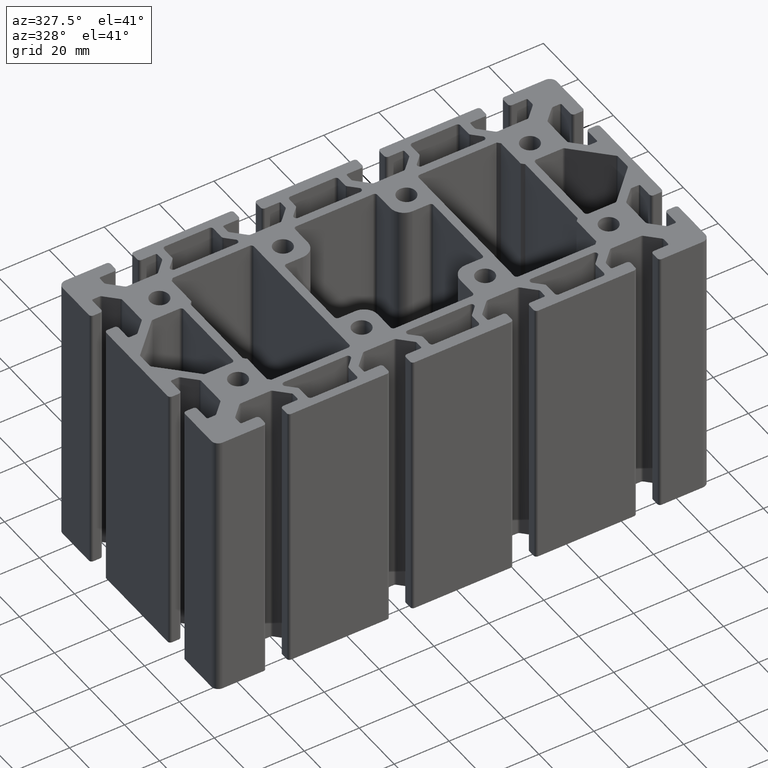
[diagram: clean part render]
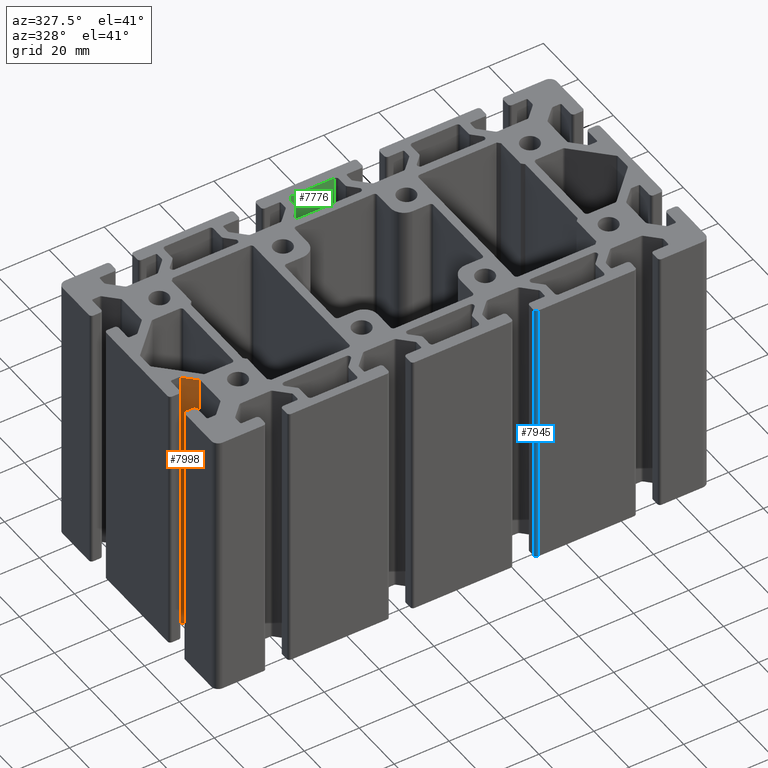
[diagram: same view with three faces highlighted in distinct colors, each labeled with its STEP entity id]
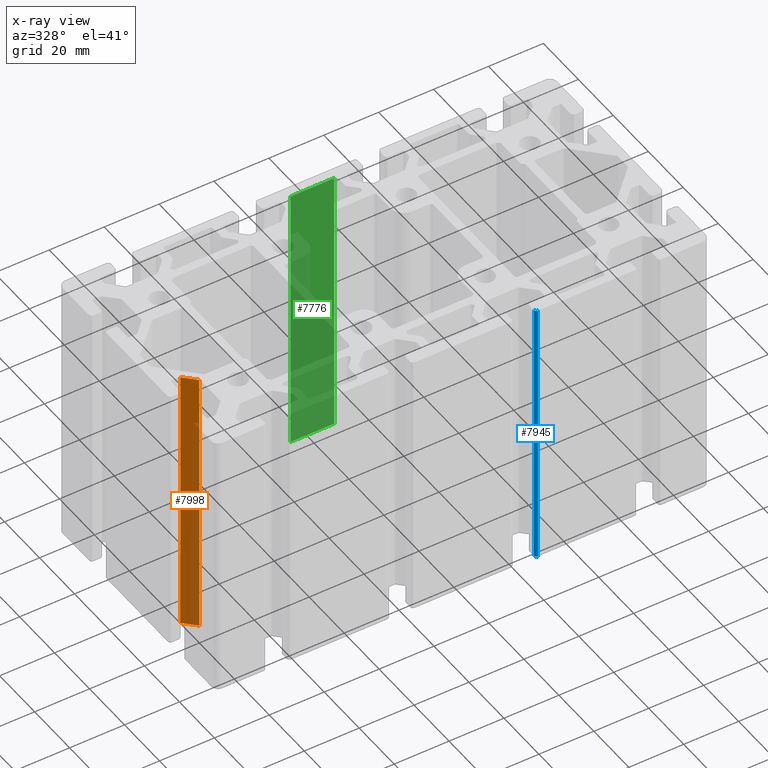
[diagram: x-ray of the same camera — body ghosted, the three highlighted faces saturated]
A machine part, auxiliary view with three faces highlighted in distinct colors.
The next image is the same camera in x-ray (body ghosted, the three faces saturated) — at least one of them is partly hidden behind the body in this view.
Their STEP definitions:

[orange] entity #7998 — the highlighted planar face has unit normal (0.7071, 0.7071, 0).
#966=FACE_OUTER_BOUND('',#1372,.T.);
#1372=EDGE_LOOP('',(#6351,#6352,#6353,#6354));
#2141=LINE('',#13202,#2941);
#2142=LINE('',#13206,#2942);
#2143=LINE('',#13208,#2943);
#2144=LINE('',#13209,#2944);
#2941=VECTOR('',#10787,100.);
#2942=VECTOR('',#10792,5.87867965644029);
#2943=VECTOR('',#10793,100.);
#2944=VECTOR('',#10794,5.87867965644029);
#3755=VERTEX_POINT('',#13199);
#3756=VERTEX_POINT('',#13201);
#3757=VERTEX_POINT('',#13205);
#3758=VERTEX_POINT('',#13207);
#4856=EDGE_CURVE('',#3756,#3755,#2141,.T.);
#4858=EDGE_CURVE('',#3757,#3755,#2142,.T.);
#4859=EDGE_CURVE('',#3758,#3757,#2143,.T.);
#4860=EDGE_CURVE('',#3756,#3758,#2144,.T.);
#6351=ORIENTED_EDGE('',*,*,#4858,.F.);
#6352=ORIENTED_EDGE('',*,*,#4859,.F.);
#6353=ORIENTED_EDGE('',*,*,#4860,.F.);
#6354=ORIENTED_EDGE('',*,*,#4856,.T.);
#7634=PLANE('',#8718);
#7998=ADVANCED_FACE('',(#966),#7634,.F.);
#8718=AXIS2_PLACEMENT_3D('',#13204,#10790,#10791);
#10787=DIRECTION('',(0.,0.,1.));
#10790=DIRECTION('center_axis',(0.70710678118655,0.707106781186545,0.));
#10791=DIRECTION('ref_axis',(-0.707106781186545,0.70710678118655,0.));
#10792=DIRECTION('',(0.707106781186545,-0.70710678118655,0.));
#10793=DIRECTION('',(0.,0.,1.));
#10794=DIRECTION('',(-0.707106781186545,0.70710678118655,0.));
#13199=CARTESIAN_POINT('',(-77.7928932188134,-16.4497474683058,100.));
#13201=CARTESIAN_POINT('',(-77.7928932188134,-16.4497474683058,0.));
#13202=CARTESIAN_POINT('',(-77.7928932188134,-16.4497474683058,0.));
#13204=CARTESIAN_POINT('Origin',(-77.7928932188134,-16.4497474683058,0.));
#13205=CARTESIAN_POINT('',(-81.9497474683057,-12.2928932188134,100.));
#13206=CARTESIAN_POINT('',(-62.4571067811866,-31.7855339059327,100.));
#13207=CARTESIAN_POINT('',(-81.9497474683057,-12.2928932188134,0.));
#13208=CARTESIAN_POINT('',(-81.9497474683057,-12.2928932188134,0.));
#13209=CARTESIAN_POINT('',(-62.4571067811866,-31.7855339059327,0.));

[blue] entity #7945 — the highlighted cylindrical surface (edge-blend (fillet) strip) has radius 1 mm, axis along (0, 0, 1).
#321=CIRCLE('',#8610,0.999998004051179);
#322=CIRCLE('',#8611,0.999998004051179);
#583=CYLINDRICAL_SURFACE('',#8609,0.999998004051179);
#913=FACE_OUTER_BOUND('',#1319,.T.);
#1319=EDGE_LOOP('',(#6139,#6140,#6141,#6142));
#2035=LINE('',#12876,#2835);
#2036=LINE('',#12882,#2836);
#2835=VECTOR('',#10465,100.);
#2836=VECTOR('',#10472,100.);
#3643=VERTEX_POINT('',#12872);
#3644=VERTEX_POINT('',#12874);
#3645=VERTEX_POINT('',#12878);
#3646=VERTEX_POINT('',#12880);
#4695=EDGE_CURVE('',#3644,#3643,#2035,.T.);
#4696=EDGE_CURVE('',#3643,#3645,#321,.T.);
#4697=EDGE_CURVE('',#3646,#3644,#322,.T.);
#4698=EDGE_CURVE('',#3645,#3646,#2036,.T.);
#6139=ORIENTED_EDGE('',*,*,#4696,.F.);
#6140=ORIENTED_EDGE('',*,*,#4695,.F.);
#6141=ORIENTED_EDGE('',*,*,#4697,.F.);
#6142=ORIENTED_EDGE('',*,*,#4698,.F.);
#7945=ADVANCED_FACE('',(#913),#583,.T.);
#8609=AXIS2_PLACEMENT_3D('',#12877,#10466,#10467);
#8610=AXIS2_PLACEMENT_3D('',#12879,#10468,#10469);
#8611=AXIS2_PLACEMENT_3D('',#12881,#10470,#10471);
#10465=DIRECTION('',(0.,0.,1.));
#10466=DIRECTION('center_axis',(0.,0.,1.));
#10467=DIRECTION('ref_axis',(1.,0.,0.));
#10468=DIRECTION('center_axis',(0.,0.,1.));
#10469=DIRECTION('ref_axis',(1.,0.,0.));
#10470=DIRECTION('center_axis',(0.,0.,-1.));
#10471=DIRECTION('ref_axis',(1.,0.,0.));
#10472=DIRECTION('',(0.,0.,-1.));
#12872=CARTESIAN_POINT('',(26.4999999999996,-44.0000019959489,100.));
#12874=CARTESIAN_POINT('',(26.4999999999996,-44.0000019959489,0.));
#12876=CARTESIAN_POINT('',(26.4999999999996,-44.0000019959489,0.));
#12877=CARTESIAN_POINT('Origin',(27.4999980040508,-44.0000019959489,0.));
#12878=CARTESIAN_POINT('',(27.4999980040508,-45.,100.));
#12879=CARTESIAN_POINT('Origin',(27.4999980040508,-44.0000019959489,100.));
#12880=CARTESIAN_POINT('',(27.4999980040508,-45.,0.));
#12881=CARTESIAN_POINT('Origin',(27.4999980040508,-44.0000019959489,0.));
#12882=CARTESIAN_POINT('',(27.4999980040508,-45.,0.));

[green] entity #7776 — the highlighted planar face has unit normal (0, 1, 0).
#744=FACE_OUTER_BOUND('',#1146,.T.);
#1146=EDGE_LOOP('',(#5471,#5472,#5473,#5474));
#1684=LINE('',#11782,#2484);
#1704=LINE('',#11841,#2504);
#1705=LINE('',#11844,#2505);
#1706=LINE('',#11845,#2506);
#2484=VECTOR('',#9376,100.);
#2504=VECTOR('',#9434,100.);
#2505=VECTOR('',#9439,16.);
#2506=VECTOR('',#9440,16.);
#3268=VERTEX_POINT('',#11776);
#3270=VERTEX_POINT('',#11780);
#3289=VERTEX_POINT('',#11838);
#3290=VERTEX_POINT('',#11840);
#4154=EDGE_CURVE('',#3270,#3268,#1684,.T.);
#4183=EDGE_CURVE('',#3290,#3289,#1704,.T.);
#4185=EDGE_CURVE('',#3268,#3289,#1705,.T.);
#4186=EDGE_CURVE('',#3290,#3270,#1706,.T.);
#5471=ORIENTED_EDGE('',*,*,#4185,.F.);
#5472=ORIENTED_EDGE('',*,*,#4154,.F.);
#5473=ORIENTED_EDGE('',*,*,#4186,.F.);
#5474=ORIENTED_EDGE('',*,*,#4183,.T.);
#7530=PLANE('',#8260);
#7776=ADVANCED_FACE('',(#744),#7530,.F.);
#8260=AXIS2_PLACEMENT_3D('',#11843,#9437,#9438);
#9376=DIRECTION('',(0.,0.,1.));
#9434=DIRECTION('',(0.,0.,1.));
#9437=DIRECTION('center_axis',(5.55111512312578E-16,1.,0.));
#9438=DIRECTION('ref_axis',(-1.,7.105427357601E-16,0.));
#9439=DIRECTION('',(1.,-5.55111512312578E-16,0.));
#9440=DIRECTION('',(-1.,5.55111512312578E-16,0.));
#11776=CARTESIAN_POINT('',(-7.99999999999996,41.,100.));
#11780=CARTESIAN_POINT('',(-7.99999999999996,41.,0.));
#11782=CARTESIAN_POINT('',(-7.99999999999996,41.,0.));
#11838=CARTESIAN_POINT('',(8.00000000000004,41.,100.));
#11840=CARTESIAN_POINT('',(8.00000000000004,41.,0.));
#11841=CARTESIAN_POINT('',(8.00000000000004,41.,0.));
#11843=CARTESIAN_POINT('Origin',(8.00000000000004,41.,0.));
#11844=CARTESIAN_POINT('',(4.00000000000003,41.,100.));
#11845=CARTESIAN_POINT('',(4.00000000000003,41.,0.));